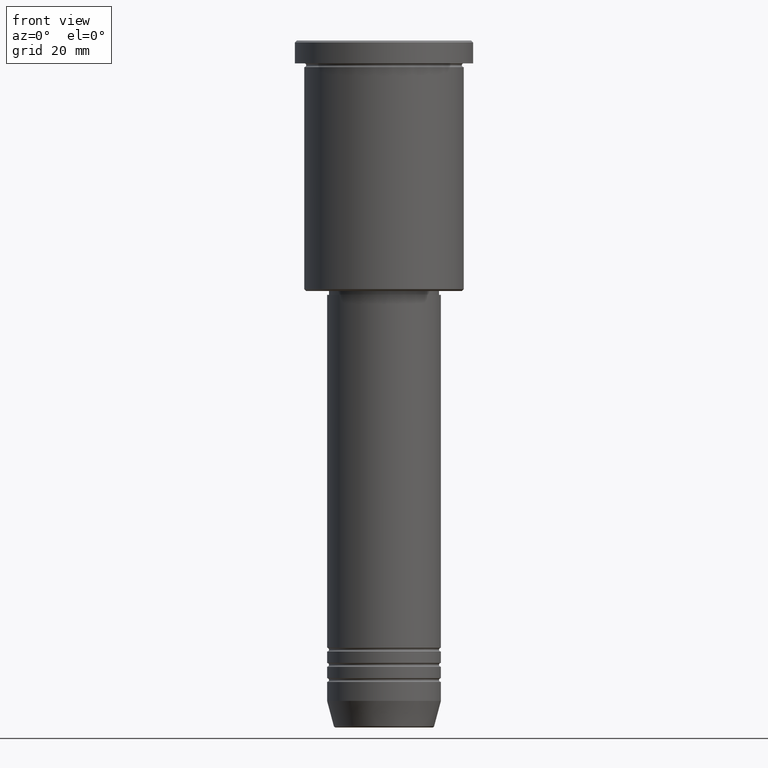
[diagram: clean part render]
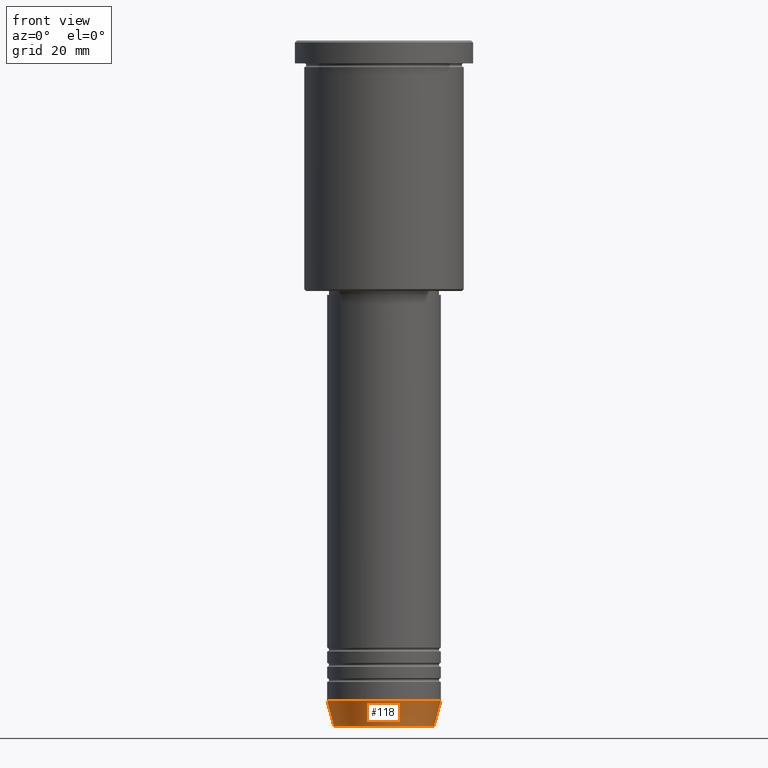
[diagram: same view with one face highlighted and labeled with its STEP entity id]
A machine part, front view. The second image highlights one B-rep face of the part: STEP entity #118.
In plain terms, the highlighted conical surface has half-angle 15 deg.
Its self-contained STEP definition (entity closure, byte-faithful):
#9 = CARTESIAN_POINT ( 'NONE',  ( 0.000000000000000000, 0.000000000000000000, -174.0000000000000000 ) ) ;
#15 = AXIS2_PLACEMENT_3D ( 'NONE', #202, #185, #30 ) ;
#23 = CARTESIAN_POINT ( 'NONE',  ( 15.00000000000000000, 0.000000000000000000, -174.0000000000000000 ) ) ;
#30 = DIRECTION ( 'NONE',  ( 1.000000000000000000, 0.000000000000000000, 0.000000000000000000 ) ) ;
#48 = LINE ( 'NONE', #1055, #338 ) ;
#50 = DIRECTION ( 'NONE',  ( 1.000000000000000000, 0.000000000000000000, 0.000000000000000000 ) ) ;
#95 = ORIENTED_EDGE ( 'NONE', *, *, #177, .F. ) ;
#118 = ADVANCED_FACE ( 'NONE', ( #549 ), #398, .T. ) ;
#154 = DIRECTION ( 'NONE',  ( -0.000000000000000000, -0.000000000000000000, 1.000000000000000000 ) ) ;
#177 = EDGE_CURVE ( 'NONE', #553, #934, #48, .T. ) ;
#185 = DIRECTION ( 'NONE',  ( -0.000000000000000000, -0.000000000000000000, 1.000000000000000000 ) ) ;
#202 = CARTESIAN_POINT ( 'NONE',  ( 0.000000000000000000, 0.000000000000000000, -174.0000000000000000 ) ) ;
#295 = CARTESIAN_POINT ( 'NONE',  ( 15.00000000000000000, 0.000000000000000000, -174.0000000000000000 ) ) ;
#337 = CARTESIAN_POINT ( 'NONE',  ( 0.000000000000000000, 0.000000000000000000, -180.6294095225512422 ) ) ;
#338 = VECTOR ( 'NONE', #885, 1000.000000000000000 ) ;
#367 = ORIENTED_EDGE ( 'NONE', *, *, #1013, .F. ) ;
#376 = VERTEX_POINT ( 'NONE', #295 ) ;
#385 = DIRECTION ( 'NONE',  ( 0.2588190451025213501, 0.000000000000000000, 0.9659258262890680902 ) ) ;
#398 = CONICAL_SURFACE ( 'NONE', #15, 15.00000000000000000, 0.2617993877991500740 ) ;
#423 = EDGE_CURVE ( 'NONE', #861, #376, #563, .T. ) ;
#549 = FACE_OUTER_BOUND ( 'NONE', #908, .T. ) ;
#553 = VERTEX_POINT ( 'NONE', #1060 ) ;
#563 = LINE ( 'NONE', #23, #803 ) ;
#646 = CARTESIAN_POINT ( 'NONE',  ( -15.00000000000000000, 1.836970198721029589E-15, -174.0000000000000000 ) ) ;
#748 = DIRECTION ( 'NONE',  ( -0.000000000000000000, -0.000000000000000000, 1.000000000000000000 ) ) ;
#788 = CIRCLE ( 'NONE', #1074, 13.22365507213719482 ) ;
#803 = VECTOR ( 'NONE', #385, 1000.000000000000000 ) ;
#832 = ORIENTED_EDGE ( 'NONE', *, *, #423, .T. ) ;
#861 = VERTEX_POINT ( 'NONE', #1163 ) ;
#867 = EDGE_CURVE ( 'NONE', #553, #861, #788, .T. ) ;
#885 = DIRECTION ( 'NONE',  ( -0.2588190451025213501, 3.169619151431772337E-17, 0.9659258262890680902 ) ) ;
#908 = EDGE_LOOP ( 'NONE', ( #95, #1127, #832, #367 ) ) ;
#917 = CIRCLE ( 'NONE', #1173, 15.00000000000000000 ) ;
#934 = VERTEX_POINT ( 'NONE', #646 ) ;
#1013 = EDGE_CURVE ( 'NONE', #934, #376, #917, .T. ) ;
#1055 = CARTESIAN_POINT ( 'NONE',  ( -15.00000000000000000, 1.836970198721029589E-15, -174.0000000000000000 ) ) ;
#1060 = CARTESIAN_POINT ( 'NONE',  ( -13.22365507213719660, 1.728200442216588780E-15, -180.6294095225512422 ) ) ;
#1074 = AXIS2_PLACEMENT_3D ( 'NONE', #337, #154, #50 ) ;
#1105 = DIRECTION ( 'NONE',  ( 1.000000000000000000, 0.000000000000000000, 0.000000000000000000 ) ) ;
#1127 = ORIENTED_EDGE ( 'NONE', *, *, #867, .T. ) ;
#1163 = CARTESIAN_POINT ( 'NONE',  ( 13.22365507213719482, 0.000000000000000000, -180.6294095225512422 ) ) ;
#1173 = AXIS2_PLACEMENT_3D ( 'NONE', #9, #748, #1105 ) ;